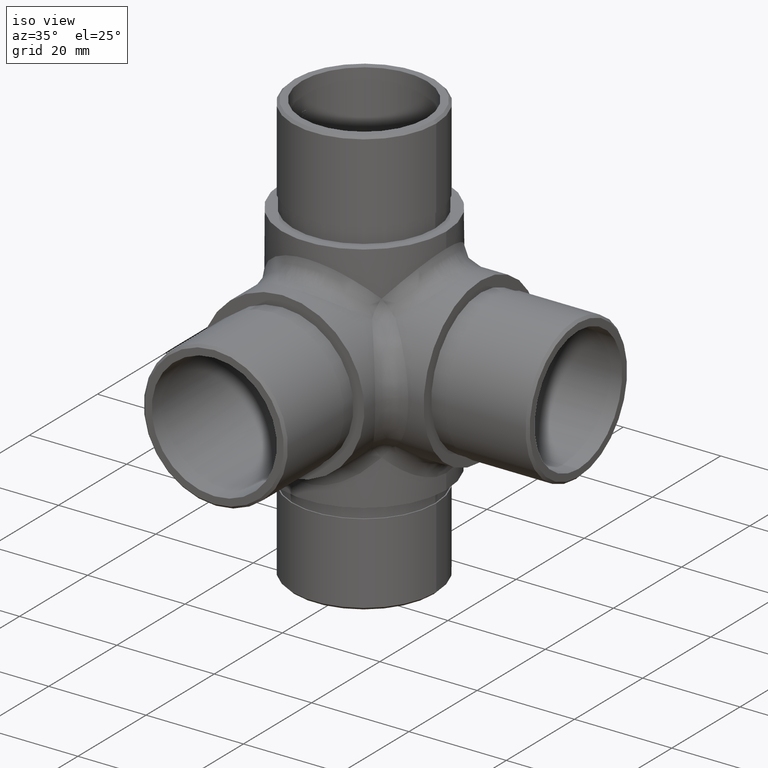
[diagram: clean part render]
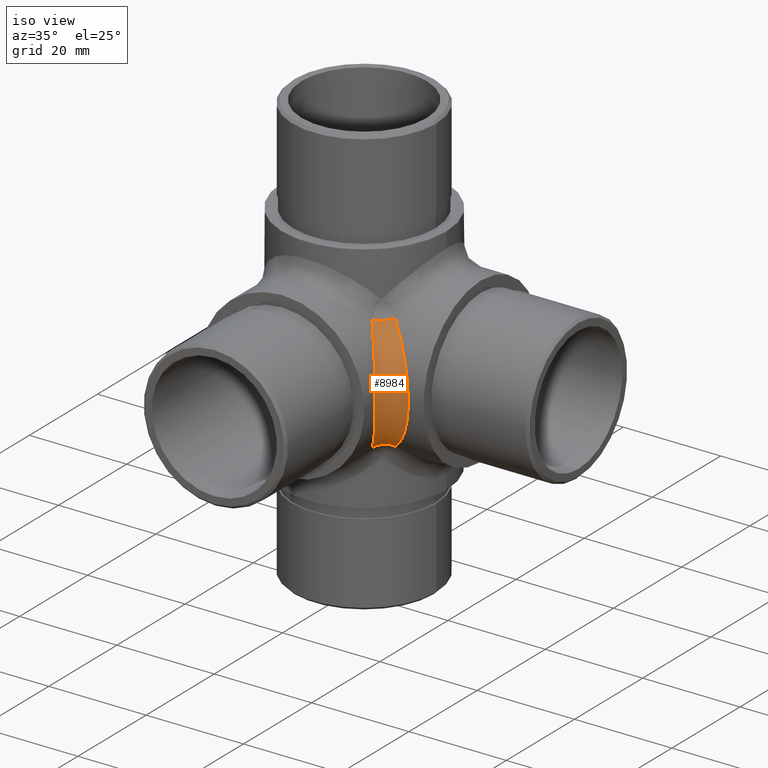
[diagram: same view with one face highlighted and labeled with its STEP entity id]
A machine part, iso view. The second image highlights one B-rep face of the part: STEP entity #8984.
In plain terms, the highlighted face is a freeform B-spline surface patch.
Its self-contained STEP definition (entity closure, byte-faithful):
#45 = CARTESIAN_POINT ( 'NONE',  ( 14.27708345598168000, 29.72291654399021300, -9.124614200889986600 ) ) ;
#435 = CIRCLE ( 'NONE', #2624, 4.000000000000000900 ) ;
#792 = CARTESIAN_POINT ( 'NONE',  ( 18.89424778898084500, 20.62047083676831600, 4.935250737007121000 ) ) ;
#986 = CARTESIAN_POINT ( 'NONE',  ( 13.63399652814049100, 30.36600347184561600, -10.06929463277305600 ) ) ;
#1001 = EDGE_LOOP ( 'NONE', ( #4569, #11464, #2758, #11859 ) ) ;
#1033 = CARTESIAN_POINT ( 'NONE',  ( 15.98940486219373900, 24.21489071946827900, -5.429333843753264300 ) ) ;
#1070 = CARTESIAN_POINT ( 'NONE',  ( 16.35041832907219100, 27.64958167089592000, 4.342449596277231400 ) ) ;
#1109 = CARTESIAN_POINT ( 'NONE',  ( 14.74317638772781600, 32.08525073700748500, -11.91474926300278100 ) ) ;
#1162 = CARTESIAN_POINT ( 'NONE',  ( 23.37952916321844700, 25.10575221100642600, -4.935250737017944400 ) ) ;
#1234 = DIRECTION ( 'NONE',  ( 0.5773502691939991200, -0.5773502691878972200, 0.5773502691869808500 ) ) ;
#1547 = CARTESIAN_POINT ( 'NONE',  ( 14.74317638772292200, 32.08525073699160400, 11.91474926298689900 ) ) ;
#1698 = CARTESIAN_POINT ( 'NONE',  ( 11.91474926299083500, 29.25682361225059900, 11.91474926299581200 ) ) ;
#1985 = CARTESIAN_POINT ( 'NONE',  ( 20.18314712517962700, 27.68891946954802600, 4.368911278976569600 ) ) ;
#2061 = CARTESIAN_POINT ( 'NONE',  ( 19.78510928049440700, 28.01059513779575400, -5.429333843751536800 ) ) ;
#2109 = CARTESIAN_POINT ( 'NONE',  ( 15.33679898262177400, 28.66320101734740400, -7.205786267732349000 ) ) ;
#2283 = VERTEX_POINT ( 'NONE', #1547 ) ;
#2624 = AXIS2_PLACEMENT_3D ( 'NONE', #6252, #6177, #13401 ) ;
#2757 = CARTESIAN_POINT ( 'NONE',  ( 13.63399652814073300, 30.36600347183054900, 10.06929463276783900 ) ) ;
#2758 = ORIENTED_EDGE ( 'NONE', *, *, #5631, .F. ) ;
#2854 = CARTESIAN_POINT ( 'NONE',  ( 16.57799399357705600, 30.60243650875515400, 10.27832799305033800 ) ) ;
#2923 = CARTESIAN_POINT ( 'NONE',  ( 18.89424778898058600, 20.62047083676863600, -4.935250737008114900 ) ) ;
#2985 = CARTESIAN_POINT ( 'NONE',  ( 23.37952916322350600, 25.10575221100233300, 4.935250737002275100 ) ) ;
#3024 = CARTESIAN_POINT ( 'NONE',  ( 20.18314712517436500, 27.68891946955117700, -4.368911278988462300 ) ) ;
#3124 = CARTESIAN_POINT ( 'NONE',  ( 16.85000000000000100, 27.14999999996286200, -0.8410305341960224700 ) ) ;
#3163 = CARTESIAN_POINT ( 'NONE',  ( 19.78510928049997700, 28.01059513779278700, 5.429333843742361900 ) ) ;
#3688 = FACE_OUTER_BOUND ( 'NONE', #1001, .T. ) ;
#3799 = CARTESIAN_POINT ( 'NONE',  ( 13.39756349122818200, 27.42200600638817000, 10.27832799304821200 ) ) ;
#3891 = CARTESIAN_POINT ( 'NONE',  ( 14.62296244336632800, 25.90571116057133200, 8.444388859714278400 ) ) ;
#4109 = CARTESIAN_POINT ( 'NONE',  ( 16.57799399356622400, 30.60243650876381600, -10.27832799306191800 ) ) ;
#4569 = ORIENTED_EDGE ( 'NONE', *, *, #9655, .T. ) ;
#4858 = CARTESIAN_POINT ( 'NONE',  ( 11.91474926299158100, 29.25682361225024800, -11.91474926299507000 ) ) ;
#4927 = CARTESIAN_POINT ( 'NONE',  ( 18.74066722517812500, 28.85466461655030200, 7.467097826959667700 ) ) ;
#5085 = CARTESIAN_POINT ( 'NONE',  ( 13.39756349121993000, 27.42200600639900200, -10.27832799305916600 ) ) ;
#5133 = CARTESIAN_POINT ( 'NONE',  ( 15.14533538342847900, 25.25933277479520100, -7.467097826969907500 ) ) ;
#5179 = CARTESIAN_POINT ( 'NONE',  ( 20.71559906759274100, 27.25861658083730500, -2.205632572971559600 ) ) ;
#5631 = EDGE_CURVE ( 'NONE', #10254, #11778, #8867, .T. ) ;
#5674 =( BOUNDED_SURFACE ( )  B_SPLINE_SURFACE ( 3, 2, ( 
 ( #9104, #10126, #1698 ),
 ( #8917, #2757, #11007 ),
 ( #2854, #9936, #3799 ),
 ( #10035, #12053, #3891 ),
 ( #4927, #12158, #12330 ),
 ( #3163, #1070, #12410 ),
 ( #1985, #7183, #6082 ),
 ( #11325, #12240, #9266 ),
 ( #11236, #11376, #12282 ),
 ( #6040, #3124, #13355 ),
 ( #5179, #13314, #9181 ),
 ( #3024, #8123, #9304 ),
 ( #2061, #11276, #1033 ),
 ( #6214, #8293, #5133 ),
 ( #10218, #2109, #13275 ),
 ( #4109, #45, #5085 ),
 ( #10311, #986, #10173 ),
 ( #8249, #12366, #6179 ) ),
 .UNSPECIFIED., .F., .F., .F. ) 
 B_SPLINE_SURFACE_WITH_KNOTS ( ( 4, 2, 2, 2, 2, 2, 2, 2, 4 ),
 ( 3, 3 ),
 ( 5.497787143781929200, 5.694136684631431000, 5.890486225480931800, 6.086835766330432700, 6.283185307179934400, 6.479534848029436100, 6.675884388878937900, 6.872233929728439600, 7.068583470577940500 ),
 ( 0.0000000000000000000, 1.000000000000000000 ),
 .UNSPECIFIED. ) 
 GEOMETRIC_REPRESENTATION_ITEM ( )  RATIONAL_B_SPLINE_SURFACE ( (
 ( 1.000000000000000000, 0.8660254037855906800, 1.000000000000000000),
 ( 1.000000000000000000, 0.8471408398699552500, 1.000000000000000000),
 ( 1.000000000000000000, 0.8275942696114334500, 1.000000000000000000),
 ( 1.000000000000000000, 0.7902180086347154700, 1.000000000000000000),
 ( 1.000000000000000000, 0.7723968218351898700, 1.000000000000000000),
 ( 1.000000000000000000, 0.7418334178652911100, 1.000000000000000000),
 ( 1.000000000000000000, 0.7291288940324306400, 1.000000000000000000),
 ( 1.000000000000000000, 0.7117460025145350100, 1.000000000000000000),
 ( 1.000000000000000000, 0.7071067811877179700, 1.000000000000000000),
 ( 1.000000000000000000, 0.7071067811892329800, 1.000000000000000000),
 ( 1.000000000000000000, 0.7117460025145512200, 1.000000000000000000),
 ( 1.000000000000000000, 0.7291288940326012800, 1.000000000000000000),
 ( 1.000000000000000000, 0.7418334178655350300, 1.000000000000000000),
 ( 1.000000000000000000, 0.7723968218352719200, 1.000000000000000000),
 ( 1.000000000000000000, 0.7902180086348293800, 1.000000000000000000),
 ( 1.000000000000000000, 0.8275942696117205600, 1.000000000000000000),
 ( 1.000000000000000000, 0.8471408398700986900, 1.000000000000000000),
 ( 1.000000000000000000, 0.8660254037857928500, 1.000000000000000000) ) ) 
 REPRESENTATION_ITEM ( '' )  SURFACE ( )  );
#5690 = CARTESIAN_POINT ( 'NONE',  ( 14.74317638772781600, 32.08525073700748500, -11.91474926300278100 ) ) ;
#5773 = CARTESIAN_POINT ( 'NONE',  ( 11.91474926299315000, 29.25682361225219800, 11.91474926299349800 ) ) ;
#6040 = CARTESIAN_POINT ( 'NONE',  ( 20.84999999997582200, 27.14999999998742200, -1.102829920690658700 ) ) ;
#6082 = CARTESIAN_POINT ( 'NONE',  ( 16.31108053043757200, 23.81685287478559600, 4.368911278976118400 ) ) ;
#6177 = DIRECTION ( 'NONE',  ( -0.5773502691932053100, 0.5773502691878360500, 0.5773502691878360500 ) ) ;
#6179 = CARTESIAN_POINT ( 'NONE',  ( 11.91474926298249800, 29.25682361226091300, -11.91474926300415200 ) ) ;
#6214 = CARTESIAN_POINT ( 'NONE',  ( 18.74066722517255800, 28.85466461655633500, -7.467097826972220400 ) ) ;
#6252 = CARTESIAN_POINT ( 'NONE',  ( 14.74317638771253200, 29.25682361225184300, 14.74317638773951300 ) ) ;
#6280 = VERTEX_POINT ( 'NONE', #5773 ) ;
#6920 = EDGE_CURVE ( 'NONE', #11778, #6280, #10559, .T. ) ;
#7183 = CARTESIAN_POINT ( 'NONE',  ( 16.54573682550008200, 27.45426317446833800, 3.433620484061899300 ) ) ;
#7401 = CARTESIAN_POINT ( 'NONE',  ( 14.74317638772781600, 29.25682361226353800, -14.74317638775121600 ) ) ;
#7873 = EDGE_CURVE ( 'NONE', #2283, #10254, #10982, .T. ) ;
#8123 = CARTESIAN_POINT ( 'NONE',  ( 16.54573682549637700, 27.45426317446967700, -3.433620484071827400 ) ) ;
#8249 = CARTESIAN_POINT ( 'NONE',  ( 14.74317638770431000, 32.08525073700494800, -11.91474926300456600 ) ) ;
#8293 = CARTESIAN_POINT ( 'NONE',  ( 15.74075530213809800, 28.25924469782753300, -6.236427480042184600 ) ) ;
#8867 = CIRCLE ( 'NONE', #12710, 3.999999999999997800 ) ;
#8917 = CARTESIAN_POINT ( 'NONE',  ( 15.70817526861725900, 31.30538353588779200, 11.13488206188006300 ) ) ;
#8984 = ADVANCED_FACE ( 'NONE', ( #3688 ), #5674, .F. ) ;
#9104 = CARTESIAN_POINT ( 'NONE',  ( 14.74317638771462300, 32.08525073699661300, 11.91474926299623000 ) ) ;
#9181 = CARTESIAN_POINT ( 'NONE',  ( 16.74138341915122700, 23.28440093237248100, -2.205632572971692800 ) ) ;
#9266 = CARTESIAN_POINT ( 'NONE',  ( 16.74138341915268000, 23.28440093237204400, 2.205632572960426300 ) ) ;
#9304 = CARTESIAN_POINT ( 'NONE',  ( 16.31108053043441700, 23.81685287479085700, -4.368911278988011100 ) ) ;
#9655 = EDGE_CURVE ( 'NONE', #2283, #6280, #435, .T. ) ;
#9936 = CARTESIAN_POINT ( 'NONE',  ( 14.27708345598862400, 29.72291654398194500, 9.124614200877156000 ) ) ;
#9960 = CARTESIAN_POINT ( 'NONE',  ( 11.91474926299315000, 29.25682361225219800, 11.91474926299349800 ) ) ;
#10035 = CARTESIAN_POINT ( 'NONE',  ( 18.09428883939389400, 29.37703755662492400, 8.444388859712919500 ) ) ;
#10126 = CARTESIAN_POINT ( 'NONE',  ( 12.85755830456317700, 31.14244169540959500, 10.97194022142386200 ) ) ;
#10173 = CARTESIAN_POINT ( 'NONE',  ( 12.69461646409912200, 28.29182473135853100, -11.13488206188894700 ) ) ;
#10218 = CARTESIAN_POINT ( 'NONE',  ( 18.09428883938848300, 29.37703755662938200, -8.444388859720986000 ) ) ;
#10254 = VERTEX_POINT ( 'NONE', #5690 ) ;
#10311 = CARTESIAN_POINT ( 'NONE',  ( 15.70817526860739800, 31.30538353589303600, -11.13488206188640500 ) ) ;
#10559 =( BOUNDED_CURVE ( )  B_SPLINE_CURVE ( 3, ( #4858, #2923, #792, #9960 ),
 .UNSPECIFIED., .F., .F. ) 
 B_SPLINE_CURVE_WITH_KNOTS ( ( 4, 4 ),
 ( 5.497787143781991400, 7.068583470577128700 ),
 .UNSPECIFIED. ) 
 CURVE ( )  GEOMETRIC_REPRESENTATION_ITEM ( )  RATIONAL_B_SPLINE_CURVE ( ( 1.000000000000000000, 0.8047378541243082100, 0.8047378541243082100, 1.000000000000000000 ) ) 
 REPRESENTATION_ITEM ( '' )  );
#10982 =( BOUNDED_CURVE ( )  B_SPLINE_CURVE ( 3, ( #12236, #2985, #1162, #1109 ),
 .UNSPECIFIED., .F., .F. ) 
 B_SPLINE_CURVE_WITH_KNOTS ( ( 4, 4 ),
 ( 5.497787143782114000, 7.068583470577888100 ),
 .UNSPECIFIED. ) 
 CURVE ( )  GEOMETRIC_REPRESENTATION_ITEM ( )  RATIONAL_B_SPLINE_CURVE ( ( 1.000000000000000000, 0.8047378541241581000, 0.8047378541241581000, 1.000000000000000000 ) ) 
 REPRESENTATION_ITEM ( '' )  );
#11007 = CARTESIAN_POINT ( 'NONE',  ( 12.69461646410490700, 28.29182473134890300, 11.13488206188206500 ) ) ;
#11236 = CARTESIAN_POINT ( 'NONE',  ( 20.84999999998055400, 27.14999999998665100, 1.102829920678865600 ) ) ;
#11276 = CARTESIAN_POINT ( 'NONE',  ( 16.35041832907149800, 27.64958167089920200, -4.342449596286782000 ) ) ;
#11325 = CARTESIAN_POINT ( 'NONE',  ( 20.71559906759317800, 27.25861658083585200, 2.205632572960293900 ) ) ;
#11376 = CARTESIAN_POINT ( 'NONE',  ( 16.85000000000000100, 27.14999999996759100, 0.8410305341888311100 ) ) ;
#11464 = ORIENTED_EDGE ( 'NONE', *, *, #6920, .F. ) ;
#11778 = VERTEX_POINT ( 'NONE', #12113 ) ;
#11859 = ORIENTED_EDGE ( 'NONE', *, *, #7873, .F. ) ;
#12053 = CARTESIAN_POINT ( 'NONE',  ( 15.33679898262600400, 28.66320101734456600, 7.205786267724948700 ) ) ;
#12113 = CARTESIAN_POINT ( 'NONE',  ( 11.91474926299158100, 29.25682361225024800, -11.91474926299507000 ) ) ;
#12158 = CARTESIAN_POINT ( 'NONE',  ( 15.74075530214386400, 28.25924469782424400, 6.236427480031363000 ) ) ;
#12236 = CARTESIAN_POINT ( 'NONE',  ( 14.74317638772292200, 32.08525073699160400, 11.91474926298689900 ) ) ;
#12240 = CARTESIAN_POINT ( 'NONE',  ( 16.79744586143836200, 27.20255413852524400, 1.673412477041674500 ) ) ;
#12282 = CARTESIAN_POINT ( 'NONE',  ( 16.85000000000038200, 23.14999999998466900, 1.102829920678810800 ) ) ;
#12330 = CARTESIAN_POINT ( 'NONE',  ( 15.14533538343413900, 25.25933277478709700, 7.467097826958252900 ) ) ;
#12366 = CARTESIAN_POINT ( 'NONE',  ( 12.85755830455506300, 31.14244169541770900, -10.97194022143330200 ) ) ;
#12410 = CARTESIAN_POINT ( 'NONE',  ( 15.98940486219708000, 24.21489071946524900, 5.429333843743191500 ) ) ;
#12706 = DIRECTION ( 'NONE',  ( 0.7071067811828114500, 0.7071067811902838100, 0.0000000000000000000 ) ) ;
#12710 = AXIS2_PLACEMENT_3D ( 'NONE', #7401, #1234, #12706 ) ;
#13275 = CARTESIAN_POINT ( 'NONE',  ( 14.62296244336145200, 25.90571116057674300, -8.444388859722968400 ) ) ;
#13314 = CARTESIAN_POINT ( 'NONE',  ( 16.79744586143947400, 27.20255413852657600, -1.673412477050388900 ) ) ;
#13355 = CARTESIAN_POINT ( 'NONE',  ( 16.84999999999961100, 23.14999999998940100, -1.102829920690603800 ) ) ;
#13401 = DIRECTION ( 'NONE',  ( 0.7071067811832593100, 0.0000000000000000000, 0.7071067811898357200 ) ) ;